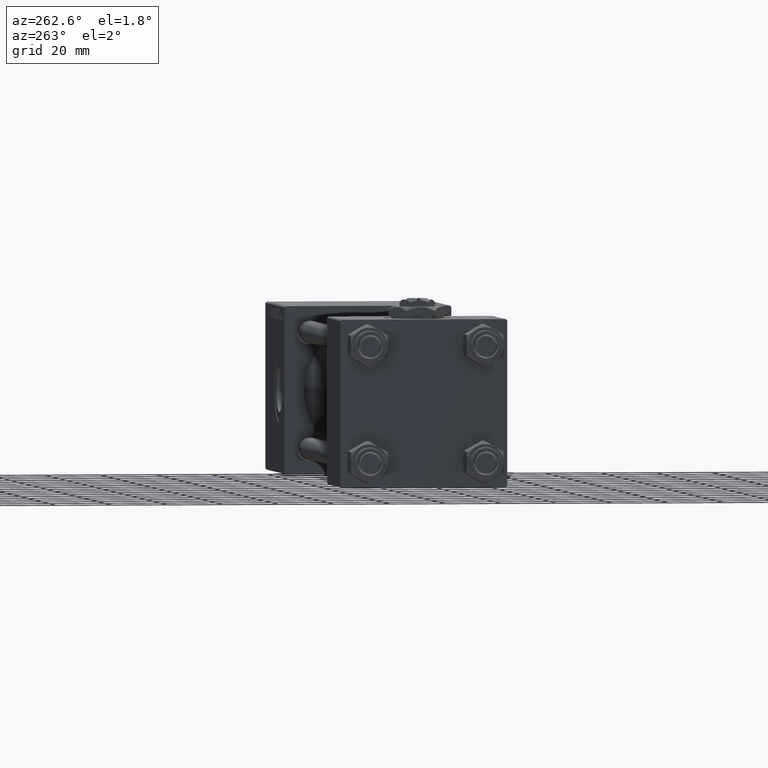
[diagram: clean part render]
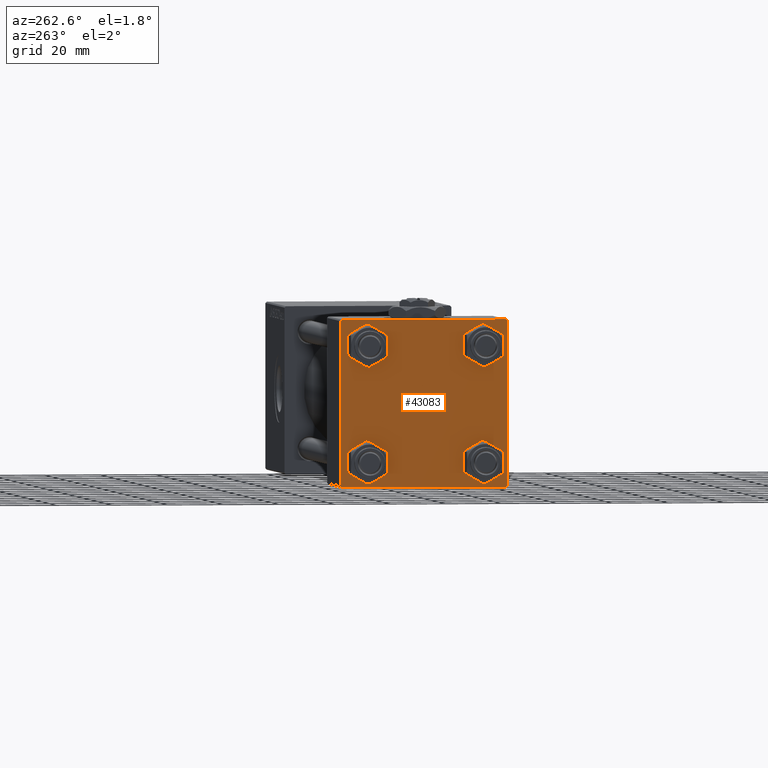
[diagram: same view with one face highlighted and labeled with its STEP entity id]
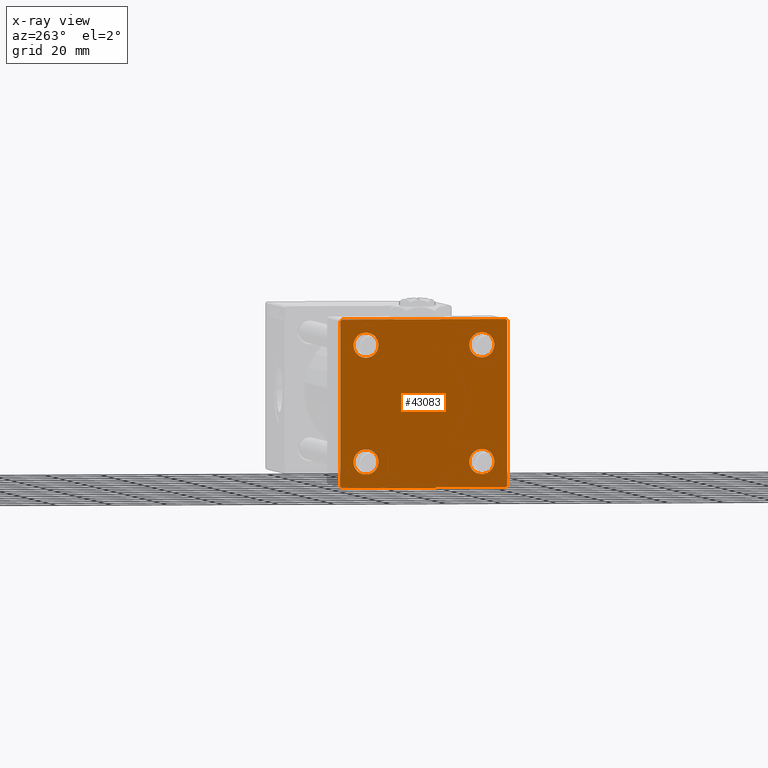
[diagram: x-ray of the same camera — body ghosted, the highlighted face saturated]
A machine part, auxiliary view. The second image highlights one B-rep face of the part: STEP entity #43083.
The next image is the same camera in x-ray: the body ghosted, the highlighted face saturated — about 0% of this face is hidden behind the body in this view.
In plain terms, the highlighted planar face has unit normal (-1, 0, 0).
Its self-contained STEP definition (entity closure, byte-faithful):
#60 = CARTESIAN_POINT ( 'NONE',  ( 0.000000000000000000, -20.84999999999999076, -20.85000000000000497 ) ) ;
#1793 = FACE_BOUND ( 'NONE', #50339, .T. ) ;
#2112 = CARTESIAN_POINT ( 'NONE',  ( 0.000000000000000000, 29.99999999999999289, 30.00000000000000000 ) ) ;
#2593 = ORIENTED_EDGE ( 'NONE', *, *, #12060, .T. ) ;
#2825 = CARTESIAN_POINT ( 'NONE',  ( 0.000000000000000000, -30.00000000000000000, 29.99999999999999289 ) ) ;
#2975 = VECTOR ( 'NONE', #37847, 1000.000000000000000 ) ;
#3459 = CIRCLE ( 'NONE', #15199, 4.500000000000017764 ) ;
#3594 = CARTESIAN_POINT ( 'NONE',  ( 0.000000000000000000, -29.75000000000001066, -29.75000000000001066 ) ) ;
#4000 = DIRECTION ( 'NONE',  ( 1.000000000000000000, -0.000000000000000000, 0.000000000000000000 ) ) ;
#4385 = ORIENTED_EDGE ( 'NONE', *, *, #41088, .T. ) ;
#4474 = ORIENTED_EDGE ( 'NONE', *, *, #30929, .T. ) ;
#4603 = VERTEX_POINT ( 'NONE', #40741 ) ;
#4922 = VERTEX_POINT ( 'NONE', #35703 ) ;
#4987 = VERTEX_POINT ( 'NONE', #9904 ) ;
#5316 = ORIENTED_EDGE ( 'NONE', *, *, #16591, .T. ) ;
#5720 = PLANE ( 'NONE',  #37735 ) ;
#6053 = VERTEX_POINT ( 'NONE', #30586 ) ;
#6175 = CIRCLE ( 'NONE', #8661, 4.500000000000017764 ) ;
#7076 = DIRECTION ( 'NONE',  ( -0.000000000000000000, -0.7071067811865574537, -0.7071067811865376918 ) ) ;
#7225 = DIRECTION ( 'NONE',  ( 1.000000000000000000, -0.000000000000000000, 0.000000000000000000 ) ) ;
#7289 = DIRECTION ( 'NONE',  ( 0.000000000000000000, -0.7071067811865474617, 0.7071067811865474617 ) ) ;
#7307 = CARTESIAN_POINT ( 'NONE',  ( 0.000000000000000000, -20.84999999999999076, 16.34999999999998721 ) ) ;
#7426 = DIRECTION ( 'NONE',  ( 1.000000000000000000, -0.000000000000000000, 0.000000000000000000 ) ) ;
#7759 = DIRECTION ( 'NONE',  ( 1.000000000000000000, -0.000000000000000000, 0.000000000000000000 ) ) ;
#7945 = DIRECTION ( 'NONE',  ( 0.000000000000000000, 0.000000000000000000, 1.000000000000000000 ) ) ;
#8636 = VERTEX_POINT ( 'NONE', #7307 ) ;
#8661 = AXIS2_PLACEMENT_3D ( 'NONE', #47461, #7759, #16423 ) ;
#8764 = EDGE_CURVE ( 'NONE', #31946, #38376, #20331, .T. ) ;
#9528 = AXIS2_PLACEMENT_3D ( 'NONE', #60, #4000, #7945 ) ;
#9904 = CARTESIAN_POINT ( 'NONE',  ( 0.000000000000000000, 20.84999999999999787, -25.35000000000001918 ) ) ;
#9918 = FACE_BOUND ( 'NONE', #29790, .T. ) ;
#10015 = EDGE_CURVE ( 'NONE', #19348, #8636, #6175, .T. ) ;
#10789 = VECTOR ( 'NONE', #33570, 1000.000000000000114 ) ;
#11216 = DIRECTION ( 'NONE',  ( 0.000000000000000000, 0.000000000000000000, 1.000000000000000000 ) ) ;
#11740 = CARTESIAN_POINT ( 'NONE',  ( 0.000000000000000000, 20.84999999999999787, -16.34999999999998366 ) ) ;
#12060 = EDGE_CURVE ( 'NONE', #47471, #4603, #18816, .T. ) ;
#12881 = ORIENTED_EDGE ( 'NONE', *, *, #10015, .T. ) ;
#12911 = EDGE_CURVE ( 'NONE', #31299, #34286, #41117, .T. ) ;
#15199 = AXIS2_PLACEMENT_3D ( 'NONE', #33727, #49773, #48976 ) ;
#15537 = EDGE_CURVE ( 'NONE', #31299, #15850, #50146, .T. ) ;
#15604 = ORIENTED_EDGE ( 'NONE', *, *, #37897, .T. ) ;
#15645 = EDGE_CURVE ( 'NONE', #38376, #31946, #29096, .T. ) ;
#15850 = VERTEX_POINT ( 'NONE', #39278 ) ;
#16423 = DIRECTION ( 'NONE',  ( 0.000000000000000000, 0.000000000000000000, 1.000000000000000000 ) ) ;
#16459 = AXIS2_PLACEMENT_3D ( 'NONE', #27920, #7426, #22695 ) ;
#16591 = EDGE_CURVE ( 'NONE', #4987, #17616, #48811, .T. ) ;
#17300 = CARTESIAN_POINT ( 'NONE',  ( 0.000000000000000000, 0.000000000000000000, 0.000000000000000000 ) ) ;
#17546 = CARTESIAN_POINT ( 'NONE',  ( 0.000000000000000000, 29.74999999999999645, 29.74999999999999645 ) ) ;
#17616 = VERTEX_POINT ( 'NONE', #11740 ) ;
#17823 = FACE_OUTER_BOUND ( 'NONE', #43807, .T. ) ;
#18021 = CARTESIAN_POINT ( 'NONE',  ( 0.000000000000000000, 29.49999999999997868, -30.00000000000000000 ) ) ;
#18090 = FACE_BOUND ( 'NONE', #32453, .T. ) ;
#18140 = LINE ( 'NONE', #35955, #32587 ) ;
#18221 = CARTESIAN_POINT ( 'NONE',  ( 0.000000000000000000, 20.84999999999999787, 25.35000000000001918 ) ) ;
#18656 = LINE ( 'NONE', #2112, #2975 ) ;
#18704 = AXIS2_PLACEMENT_3D ( 'NONE', #40843, #44522, #39813 ) ;
#18816 = CIRCLE ( 'NONE', #9528, 4.500000000000017764 ) ;
#18853 = EDGE_CURVE ( 'NONE', #4603, #47471, #41354, .T. ) ;
#19304 = CARTESIAN_POINT ( 'NONE',  ( 0.000000000000000000, 20.84999999999999787, -20.85000000000000142 ) ) ;
#19348 = VERTEX_POINT ( 'NONE', #24149 ) ;
#20059 = DIRECTION ( 'NONE',  ( 0.000000000000000000, 0.000000000000000000, 1.000000000000000000 ) ) ;
#20331 = CIRCLE ( 'NONE', #41312, 4.500000000000017764 ) ;
#21235 = DIRECTION ( 'NONE',  ( -1.000000000000000000, 0.000000000000000000, -0.000000000000000000 ) ) ;
#21443 = VECTOR ( 'NONE', #42764, 1000.000000000000000 ) ;
#21630 = CARTESIAN_POINT ( 'NONE',  ( 0.000000000000000000, -20.84999999999999076, -16.34999999999998721 ) ) ;
#21679 = ORIENTED_EDGE ( 'NONE', *, *, #15537, .F. ) ;
#21723 = EDGE_CURVE ( 'NONE', #6053, #34286, #42439, .T. ) ;
#22695 = DIRECTION ( 'NONE',  ( 0.000000000000000000, 0.000000000000000000, 1.000000000000000000 ) ) ;
#23398 = CARTESIAN_POINT ( 'NONE',  ( 0.000000000000000000, -30.00000000000000000, 29.49999999999999289 ) ) ;
#24149 = CARTESIAN_POINT ( 'NONE',  ( 0.000000000000000000, -20.84999999999999076, 25.35000000000002274 ) ) ;
#24259 = ORIENTED_EDGE ( 'NONE', *, *, #12911, .T. ) ;
#24337 = EDGE_CURVE ( 'NONE', #47462, #4922, #18656, .T. ) ;
#26092 = CARTESIAN_POINT ( 'NONE',  ( 0.000000000000000000, 29.99999999999999289, 29.50000000000000000 ) ) ;
#26225 = FACE_BOUND ( 'NONE', #40875, .T. ) ;
#26909 = DIRECTION ( 'NONE',  ( -0.000000000000000000, 0.7071067811865474617, 0.7071067811865474617 ) ) ;
#27507 = CARTESIAN_POINT ( 'NONE',  ( 0.000000000000000000, 20.84999999999999787, 20.85000000000000142 ) ) ;
#27534 = DIRECTION ( 'NONE',  ( 1.000000000000000000, -0.000000000000000000, 0.000000000000000000 ) ) ;
#27920 = CARTESIAN_POINT ( 'NONE',  ( 0.000000000000000000, 20.84999999999999787, -20.85000000000000142 ) ) ;
#28281 = LINE ( 'NONE', #41413, #34298 ) ;
#28395 = ORIENTED_EDGE ( 'NONE', *, *, #36742, .T. ) ;
#28994 = VERTEX_POINT ( 'NONE', #37083 ) ;
#29096 = CIRCLE ( 'NONE', #37390, 4.500000000000017764 ) ;
#29357 = CARTESIAN_POINT ( 'NONE',  ( 0.000000000000000000, 29.99999999999999289, 30.00000000000000000 ) ) ;
#29790 = EDGE_LOOP ( 'NONE', ( #2593, #39220 ) ) ;
#30586 = CARTESIAN_POINT ( 'NONE',  ( 0.000000000000000000, 29.49999999999999289, 30.00000000000000000 ) ) ;
#30929 = EDGE_CURVE ( 'NONE', #17616, #4987, #42482, .T. ) ;
#31299 = VERTEX_POINT ( 'NONE', #23398 ) ;
#31368 = VECTOR ( 'NONE', #45395, 1000.000000000000000 ) ;
#31474 = CARTESIAN_POINT ( 'NONE',  ( 0.000000000000000000, 20.84999999999999787, 20.85000000000000142 ) ) ;
#31805 = CARTESIAN_POINT ( 'NONE',  ( 0.000000000000000000, -29.49999999999998579, 29.99999999999999289 ) ) ;
#31946 = VERTEX_POINT ( 'NONE', #34863 ) ;
#32453 = EDGE_LOOP ( 'NONE', ( #12881, #48858 ) ) ;
#32587 = VECTOR ( 'NONE', #7076, 999.9999999999998863 ) ;
#33570 = DIRECTION ( 'NONE',  ( 0.000000000000000000, 0.7071067811865474617, -0.7071067811865474617 ) ) ;
#33727 = CARTESIAN_POINT ( 'NONE',  ( 0.000000000000000000, -20.84999999999999076, 20.85000000000000497 ) ) ;
#34286 = VERTEX_POINT ( 'NONE', #31805 ) ;
#34298 = VECTOR ( 'NONE', #40893, 1000.000000000000000 ) ;
#34863 = CARTESIAN_POINT ( 'NONE',  ( 0.000000000000000000, 20.84999999999999787, 16.34999999999998366 ) ) ;
#35703 = CARTESIAN_POINT ( 'NONE',  ( 0.000000000000000000, 29.99999999999999289, -29.50000000000000000 ) ) ;
#35955 = CARTESIAN_POINT ( 'NONE',  ( 0.000000000000000000, 29.74999999999957723, -29.75000000000040501 ) ) ;
#36742 = EDGE_CURVE ( 'NONE', #4922, #37341, #18140, .T. ) ;
#37083 = CARTESIAN_POINT ( 'NONE',  ( 0.000000000000000000, -29.50000000000000000, -30.00000000000000711 ) ) ;
#37341 = VERTEX_POINT ( 'NONE', #18021 ) ;
#37390 = AXIS2_PLACEMENT_3D ( 'NONE', #27507, #43797, #11216 ) ;
#37397 = ORIENTED_EDGE ( 'NONE', *, *, #15645, .T. ) ;
#37529 = DIRECTION ( 'NONE',  ( -0.000000000000000000, 0.000000000000000000, 1.000000000000000000 ) ) ;
#37735 = AXIS2_PLACEMENT_3D ( 'NONE', #17300, #21235, #37529 ) ;
#37847 = DIRECTION ( 'NONE',  ( 0.000000000000000000, 0.000000000000000000, -1.000000000000000000 ) ) ;
#37897 = EDGE_CURVE ( 'NONE', #6053, #47462, #40944, .T. ) ;
#38109 = ORIENTED_EDGE ( 'NONE', *, *, #24337, .T. ) ;
#38376 = VERTEX_POINT ( 'NONE', #18221 ) ;
#39220 = ORIENTED_EDGE ( 'NONE', *, *, #18853, .T. ) ;
#39278 = CARTESIAN_POINT ( 'NONE',  ( 0.000000000000000000, -30.00000000000000000, -29.50000000000001776 ) ) ;
#39813 = DIRECTION ( 'NONE',  ( 0.000000000000000000, 0.000000000000000000, 1.000000000000000000 ) ) ;
#40303 = ORIENTED_EDGE ( 'NONE', *, *, #8764, .T. ) ;
#40741 = CARTESIAN_POINT ( 'NONE',  ( 0.000000000000000000, -20.84999999999999076, -25.35000000000002274 ) ) ;
#40843 = CARTESIAN_POINT ( 'NONE',  ( 0.000000000000000000, -20.84999999999999076, -20.85000000000000497 ) ) ;
#40875 = EDGE_LOOP ( 'NONE', ( #4474, #5316 ) ) ;
#40893 = DIRECTION ( 'NONE',  ( 0.000000000000000000, -1.000000000000000000, -1.156482317317871725E-16 ) ) ;
#40944 = LINE ( 'NONE', #17546, #10789 ) ;
#41088 = EDGE_CURVE ( 'NONE', #37341, #28994, #28281, .T. ) ;
#41117 = LINE ( 'NONE', #42433, #45666 ) ;
#41312 = AXIS2_PLACEMENT_3D ( 'NONE', #31474, #27534, #43568 ) ;
#41354 = CIRCLE ( 'NONE', #18704, 4.500000000000017764 ) ;
#41413 = CARTESIAN_POINT ( 'NONE',  ( 0.000000000000000000, 29.99999999999999289, -30.00000000000000000 ) ) ;
#41785 = ORIENTED_EDGE ( 'NONE', *, *, #48448, .T. ) ;
#42433 = CARTESIAN_POINT ( 'NONE',  ( -0.000000000000000000, -29.74999999999999645, 29.74999999999999645 ) ) ;
#42439 = LINE ( 'NONE', #29357, #31368 ) ;
#42482 = CIRCLE ( 'NONE', #16459, 4.500000000000017764 ) ;
#42764 = DIRECTION ( 'NONE',  ( 0.000000000000000000, 0.000000000000000000, -1.000000000000000000 ) ) ;
#42777 = LINE ( 'NONE', #3594, #48776 ) ;
#43083 = ADVANCED_FACE ( 'NONE', ( #18090, #9918, #26225, #1793, #17823 ), #5720, .T. ) ;
#43568 = DIRECTION ( 'NONE',  ( 0.000000000000000000, 0.000000000000000000, 1.000000000000000000 ) ) ;
#43797 = DIRECTION ( 'NONE',  ( 1.000000000000000000, -0.000000000000000000, 0.000000000000000000 ) ) ;
#43807 = EDGE_LOOP ( 'NONE', ( #38109, #28395, #4385, #41785, #21679, #24259, #49430, #15604 ) ) ;
#44522 = DIRECTION ( 'NONE',  ( 1.000000000000000000, -0.000000000000000000, 0.000000000000000000 ) ) ;
#45395 = DIRECTION ( 'NONE',  ( 0.000000000000000000, -1.000000000000000000, -1.156482317317871725E-16 ) ) ;
#45447 = AXIS2_PLACEMENT_3D ( 'NONE', #19304, #7225, #20059 ) ;
#45666 = VECTOR ( 'NONE', #26909, 1000.000000000000114 ) ;
#47462 = VERTEX_POINT ( 'NONE', #26092 ) ;
#47461 = CARTESIAN_POINT ( 'NONE',  ( 0.000000000000000000, -20.84999999999999076, 20.85000000000000497 ) ) ;
#47471 = VERTEX_POINT ( 'NONE', #21630 ) ;
#48448 = EDGE_CURVE ( 'NONE', #28994, #15850, #42777, .T. ) ;
#48776 = VECTOR ( 'NONE', #7289, 1000.000000000000114 ) ;
#48811 = CIRCLE ( 'NONE', #45447, 4.500000000000017764 ) ;
#48858 = ORIENTED_EDGE ( 'NONE', *, *, #48923, .T. ) ;
#48923 = EDGE_CURVE ( 'NONE', #8636, #19348, #3459, .T. ) ;
#48976 = DIRECTION ( 'NONE',  ( 0.000000000000000000, 0.000000000000000000, 1.000000000000000000 ) ) ;
#49430 = ORIENTED_EDGE ( 'NONE', *, *, #21723, .F. ) ;
#49773 = DIRECTION ( 'NONE',  ( 1.000000000000000000, -0.000000000000000000, 0.000000000000000000 ) ) ;
#50146 = LINE ( 'NONE', #2825, #21443 ) ;
#50339 = EDGE_LOOP ( 'NONE', ( #37397, #40303 ) ) ;